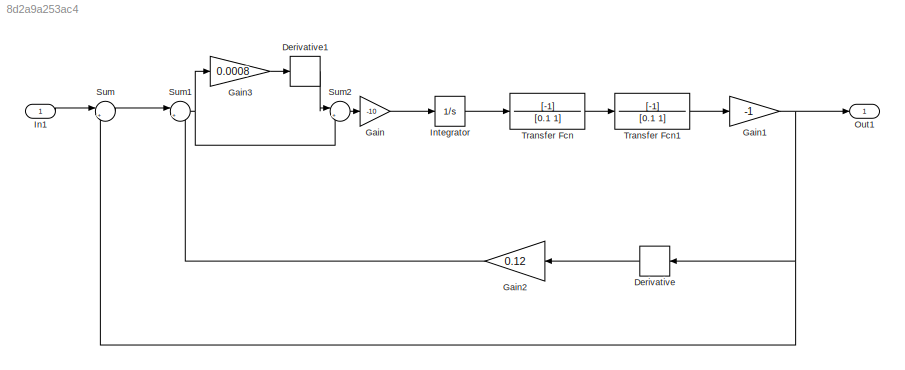
MODEL slx_8d2a9a253ac4
KIND model
CONFIG AbsTol = auto
CONFIG EnableMultiTasking = off
CONFIG FixedStep = auto
CONFIG MaxStep = 0.0005
CONFIG MinStep = auto
CONFIG RelTol = 1e-3
CONFIG SampleTimeConstraint = Unconstrained
CONFIG SolverName = VariableStepAuto
CONFIG StartTime = 0.0
CONFIG StopTime = 10.0
BLOCK [Derivative] Derivative
  NameLocation = top
BLOCK [Derivative] Derivative1
BLOCK [Gain] Gain
  Gain = -10
BLOCK [Gain] Gain1
  Gain = -1
BLOCK [Gain] Gain2
  Gain = 0.12
  NameLocation = top
BLOCK [Gain] Gain3
  Gain = 0.0008
BLOCK [Inport] In1
BLOCK [Integrator] Integrator
  Ports = [1, 1]
BLOCK [Outport] Out1
BLOCK [Sum] Sum
  Inputs = |+-
  Ports = [2, 1]
BLOCK [Sum] Sum1
  Inputs = |+-
  Ports = [2, 1]
BLOCK [Sum] Sum2
  Inputs = |++
  Ports = [2, 1]
BLOCK [TransferFcn] Transfer Fcn
  Denominator = [0.1 1]
  Numerator = [-1]
BLOCK [TransferFcn] Transfer Fcn1
  Denominator = [0.1 1]
  Numerator = [-1]
LINE Derivative1:1 -> Sum2:1
LINE Derivative:1 -> Gain2:1
NET Gain1:1 -> Derivative:1, Out1:1, Sum:2
LINE Gain2:1 -> Sum1:2
LINE Gain3:1 -> Derivative1:1
LINE Gain:1 -> Integrator:1
LINE In1:1 -> Sum:1
LINE Integrator:1 -> Transfer Fcn:1
NET Sum1:1 -> Gain3:1, Sum2:2
LINE Sum2:1 -> Gain:1
LINE Sum:1 -> Sum1:1
LINE Transfer Fcn1:1 -> Gain1:1
LINE Transfer Fcn:1 -> Transfer Fcn1:1
note: NET lines group one-source signal fan-out (src -> all destinations, sorted); 1:1 wires keep LINE
